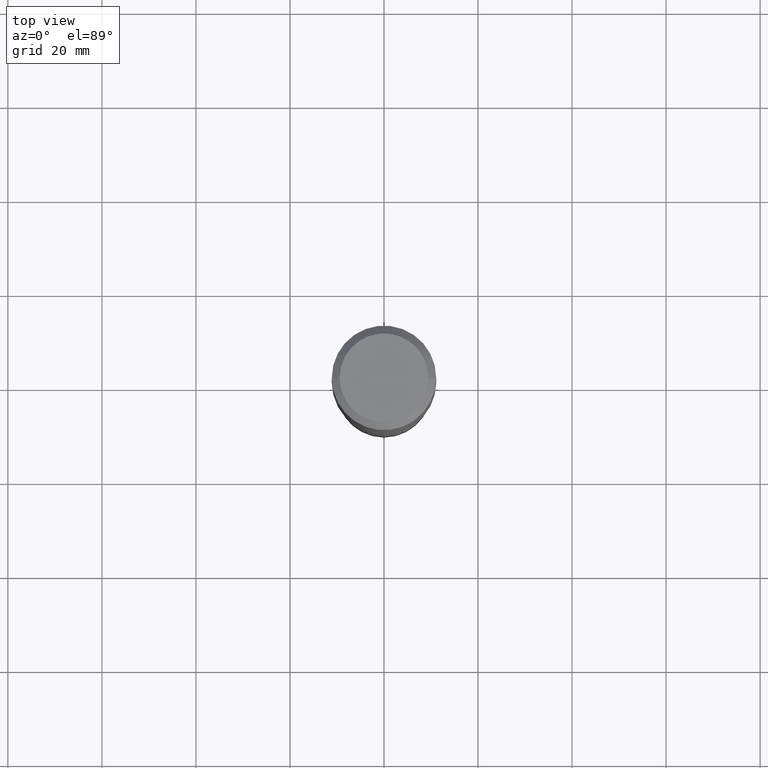
[diagram: clean part render]
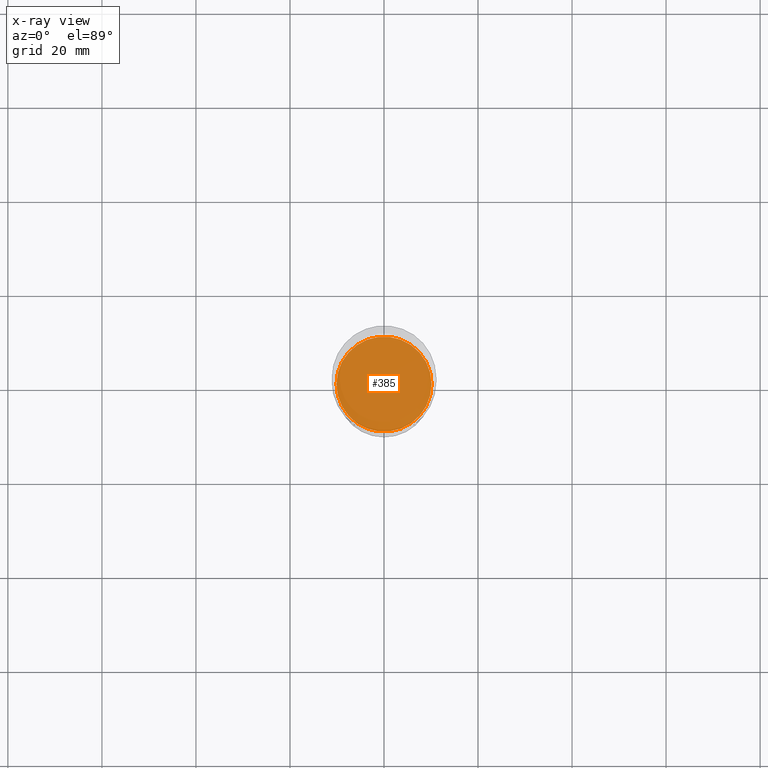
[diagram: x-ray — body ghosted, one internal face saturated and labeled with its STEP entity id]
A machine part, top view, then the same camera in x-ray: the body is ghosted and one INTERNAL B-rep face — a face not visible from any outside direction — is saturated and labeled: STEP entity #385.
In plain terms, the highlighted planar face has unit normal (-0, 0, 1).
Its self-contained STEP definition (entity closure, byte-faithful):
#11 = AXIS2_PLACEMENT_3D ( 'NONE', #135, #392, #440 ) ;
#13 = ORIENTED_EDGE ( 'NONE', *, *, #231, .F. ) ;
#58 = ORIENTED_EDGE ( 'NONE', *, *, #424, .F. ) ;
#73 = CARTESIAN_POINT ( 'NONE',  ( -0.3979500000000000814, -8.026158030867447825E-15, -3.109400000000000386 ) ) ;
#93 = AXIS2_PLACEMENT_3D ( 'NONE', #262, #108, #411 ) ;
#108 = DIRECTION ( 'NONE',  ( -2.445468806185136597E-29, 3.491481338843145583E-15, 1.000000000000000000 ) ) ;
#114 = PLANE ( 'NONE',  #194 ) ;
#135 = CARTESIAN_POINT ( 'NONE',  ( 7.603940705952065203E-29, -1.085641207499887869E-14, -3.109400000000000386 ) ) ;
#151 = CARTESIAN_POINT ( 'NONE',  ( 7.603940705952065203E-29, -1.085641207499887869E-14, -3.109400000000000386 ) ) ;
#194 = AXIS2_PLACEMENT_3D ( 'NONE', #151, #443, #335 ) ;
#199 = CARTESIAN_POINT ( 'NONE',  ( 0.3979500000000000814, -1.363528207258412826E-14, -3.109400000000000386 ) ) ;
#226 = EDGE_LOOP ( 'NONE', ( #13, #58 ) ) ;
#231 = EDGE_CURVE ( 'NONE', #436, #427, #447, .T. ) ;
#262 = CARTESIAN_POINT ( 'NONE',  ( 7.603940705952065203E-29, -1.085641207499887869E-14, -3.109400000000000386 ) ) ;
#335 = DIRECTION ( 'NONE',  ( 1.000000000000000000, -6.982962677686265922E-15, 4.876176775795935793E-29 ) ) ;
#371 = CIRCLE ( 'NONE', #93, 0.3979500000000000814 ) ;
#385 = ADVANCED_FACE ( 'NONE', ( #446 ), #114, .F. ) ;
#392 = DIRECTION ( 'NONE',  ( -2.445468806185136597E-29, 3.491481338843145583E-15, 1.000000000000000000 ) ) ;
#411 = DIRECTION ( 'NONE',  ( 1.000000000000000000, -6.982962677686264344E-15, 0.000000000000000000 ) ) ;
#424 = EDGE_CURVE ( 'NONE', #427, #436, #371, .T. ) ;
#427 = VERTEX_POINT ( 'NONE', #73 ) ;
#436 = VERTEX_POINT ( 'NONE', #199 ) ;
#440 = DIRECTION ( 'NONE',  ( 1.000000000000000000, -6.982962677686264344E-15, 0.000000000000000000 ) ) ;
#443 = DIRECTION ( 'NONE',  ( -2.438088387897960049E-29, 3.491481338843145188E-15, 1.000000000000000000 ) ) ;
#446 = FACE_OUTER_BOUND ( 'NONE', #226, .T. ) ;
#447 = CIRCLE ( 'NONE', #11, 0.3979500000000000814 ) ;